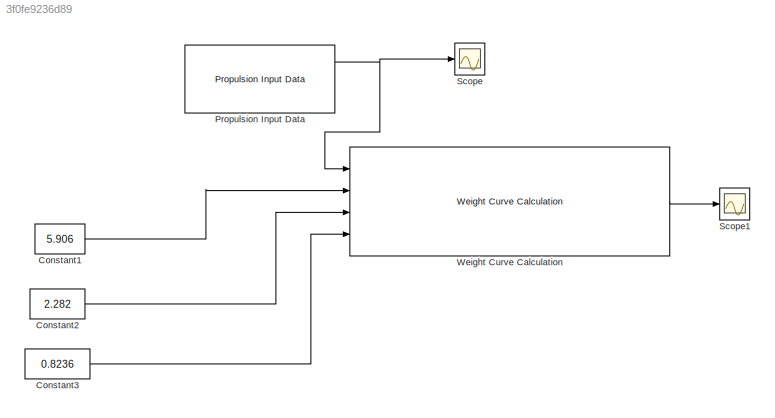
MODEL slx_3f0fe9236d89
KIND model
BLOCK [Constant] Constant1
  Value = 5.906
BLOCK [Constant] Constant2
  Value = 2.282
BLOCK [Constant] Constant3
  Value = 0.8236
BLOCK [Reference] Propulsion Input Data  REF=rocket_thrust_data_library/Propulsion Input Data
  Ports = [0, 3]
  RTWMemSecDataConstants = Inherit from model
  RTWMemSecDataInternal = Inherit from model
  RTWMemSecDataParameters = Inherit from model
  RTWMemSecFuncExecute = Inherit from model
  RTWMemSecFuncInitTerm = Inherit from model
  SourceBlock = rocket_thrust_data_library/Propulsion Input Data
  SourceType = SubSystem
BLOCK [Scope] Scope
  DataFormat = StructureWithTime
  Floating = off
  NumInputPorts = 1
  Ports = [1]
  SampleTime = 0
  ShowLegends = off
BLOCK [Scope] Scope1
  DataFormat = StructureWithTime
  Floating = off
  NumInputPorts = 1
  Ports = [1]
  SampleTime = 0
  SaveName = ScopeData1
  ShowLegends = off
BLOCK [Reference] Weight Curve Calculation  REF=rocket_dynamic_data_library/Weight Curve Calculation  (lib defined in slx_58be5b8ac4f4)
  Ports = [4, 1]
  SourceBlock = rocket_dynamic_data_library/Weight Curve Calculation
  SourceType = SubSystem
LINE Constant1:1 -> Weight Curve Calculation:2
LINE Constant2:1 -> Weight Curve Calculation:3
LINE Constant3:1 -> Weight Curve Calculation:4
NET Propulsion Input Data:1 -> Scope:1, Weight Curve Calculation:1
LINE Weight Curve Calculation:1 -> Scope1:1
note: NET lines group one-source signal fan-out (src -> all destinations, sorted); 1:1 wires keep LINE
